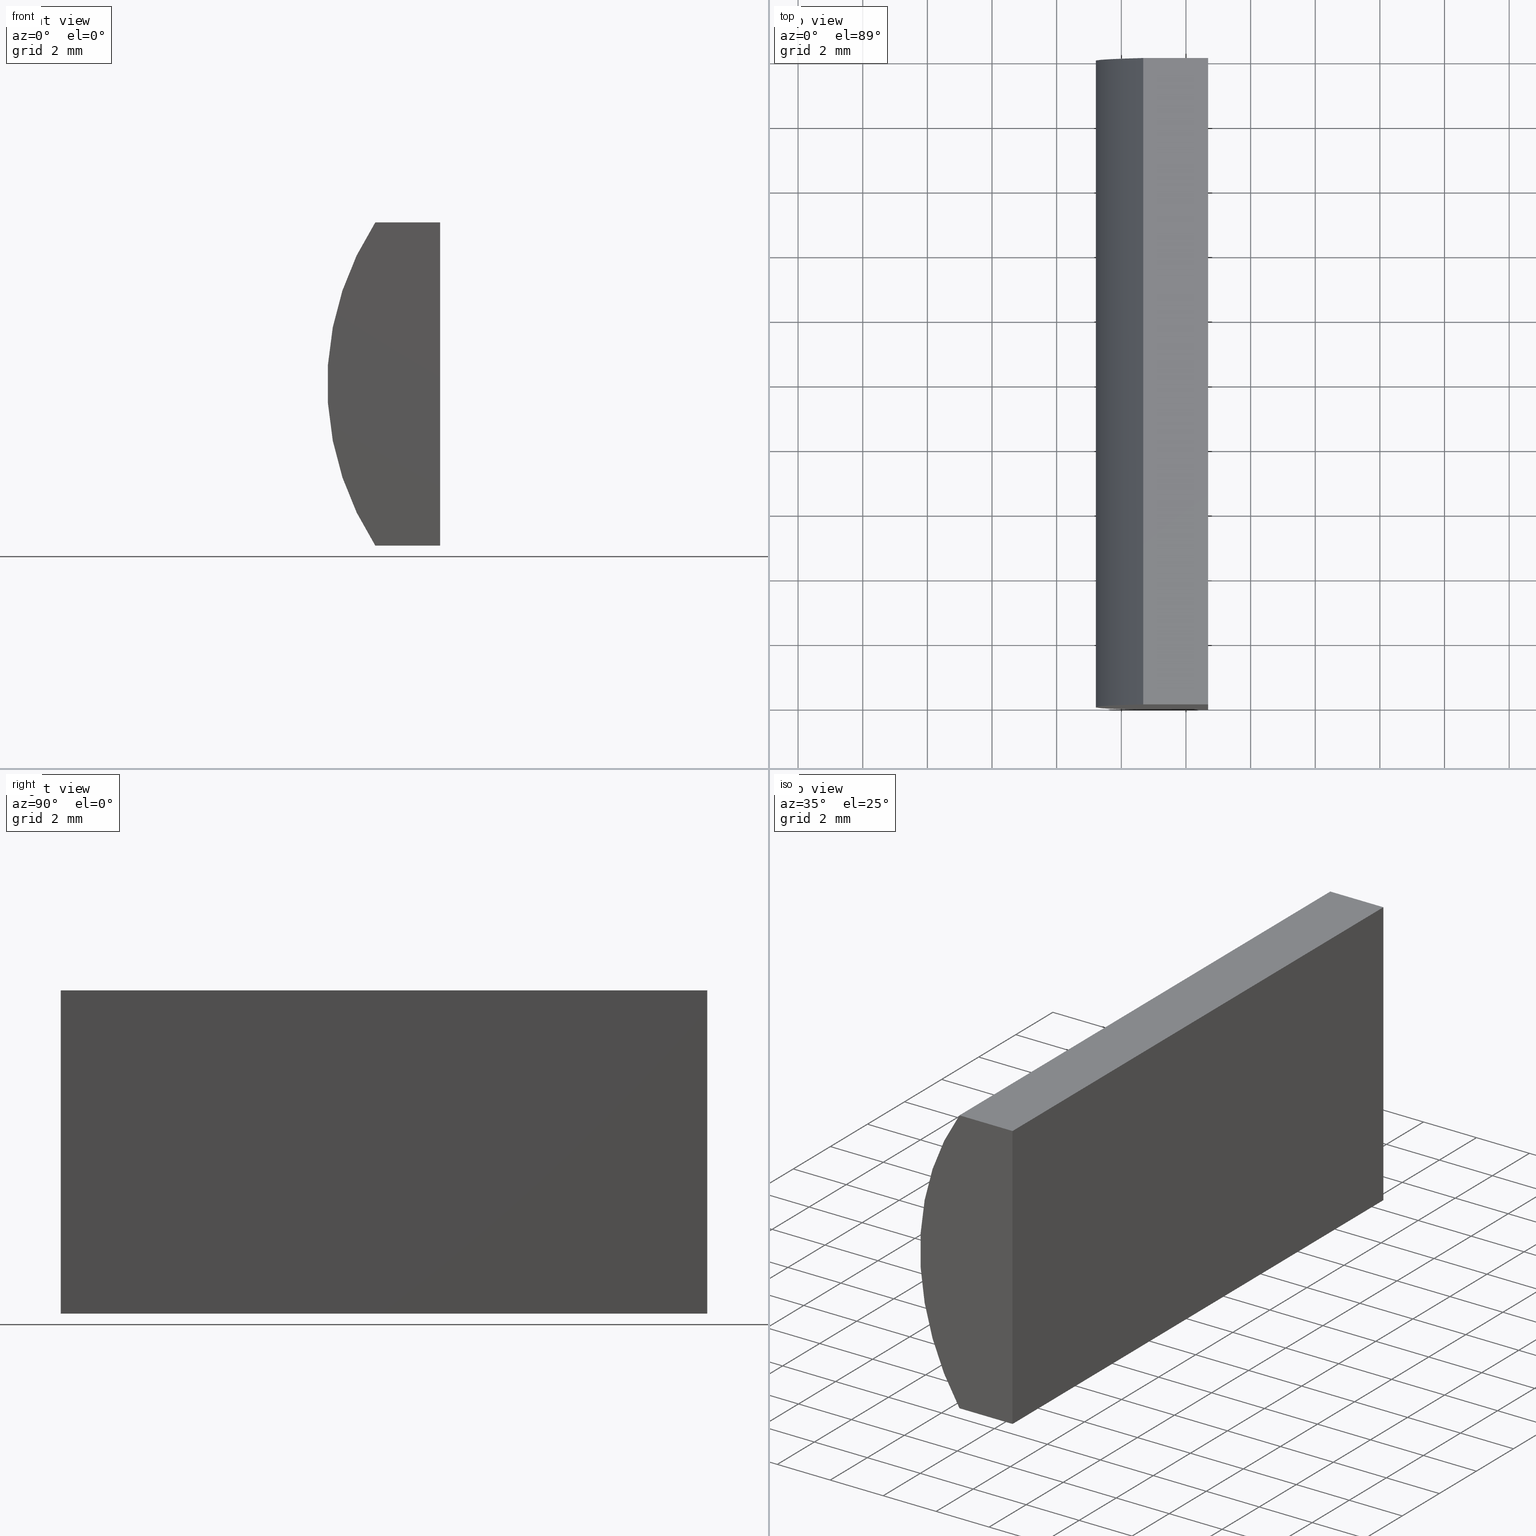
[diagram: canonical four-view strip — front | top / right | iso, engineering-drawing reading convention]
A machine part, canonical four-view strip (front | top / right | iso — engineering-drawing reading convention). The complete STEP part file that produces these views, byte-faithful:
ISO-10303-21;
HEADER;
FILE_DESCRIPTION (( 'STEP AP214' ),
    '1' );
FILE_NAME ('155280.STEP',
    '2019-06-26T01:44:26',
    ( 'user' ),
    ( '΢���й�' ),
    'SwSTEP 2.0',
    'SolidWorks 2016',
    '' );
FILE_SCHEMA (( 'AUTOMOTIVE_DESIGN' ));
ENDSEC;

DATA;
#1 = CARTESIAN_POINT ( 'NONE',  ( -3.319794036484067700, 0.0000000000000000000, -5.000000000000000000 ) ) ;
#2 = LINE ( 'NONE', #1, #130 ) ;
#3 = EDGE_CURVE ( 'NONE', #26, #65, #140, .T. ) ;
#4 = SURFACE_STYLE_USAGE ( .BOTH. , #119 ) ;
#5 = PRESENTATION_LAYER_ASSIGNMENT (  '', '', ( #11 ) ) ;
#6 = APPLICATION_PROTOCOL_DEFINITION ( 'draft international standard', 'automotive_design', 1998, #146 ) ;
#7 = UNCERTAINTY_MEASURE_WITH_UNIT (LENGTH_MEASURE( 1.000000000000000100E-005 ), #183, 'distance_accuracy_value', 'NONE');
#8 = EDGE_CURVE ( 'NONE', #167, #9, #36, .T. ) ;
#9 = VERTEX_POINT ( 'NONE', #39 ) ;
#10 = ADVANCED_FACE ( 'NONE', ( #40 ), #136, .F. ) ;
#11 = STYLED_ITEM ( 'NONE', ( #139 ), #79 ) ;
#12 = DIRECTION ( 'NONE',  ( -0.0000000000000000000, -1.000000000000000000, -0.0000000000000000000 ) ) ;
#13 = ORIENTED_EDGE ( 'NONE', *, *, #50, .F. ) ;
#14 = CARTESIAN_POINT ( 'NONE',  ( -3.319794036484067700, 20.00000000000000000, 5.000000000000000000 ) ) ;
#15 = EDGE_CURVE ( 'NONE', #167, #144, #63, .T. ) ;
#16 = DIRECTION ( 'NONE',  ( -1.000000000000000000, 0.0000000000000000000, 3.035766082959411900E-016 ) ) ;
#17 = DIRECTION ( 'NONE',  ( -3.035766082959411900E-016, -0.0000000000000000000, -1.000000000000000000 ) ) ;
#18 = EDGE_CURVE ( 'NONE', #9, #57, #125, .T. ) ;
#19 = SURFACE_STYLE_FILL_AREA ( #181 ) ;
#20 =( LENGTH_UNIT ( ) NAMED_UNIT ( * ) SI_UNIT ( .MILLI., .METRE. ) );
#21 = CARTESIAN_POINT ( 'NONE',  ( -3.319794036484067700, 20.00000000000000000, 5.000000000000000000 ) ) ;
#22 = AXIS2_PLACEMENT_3D ( 'NONE', #32, #148, #114 ) ;
#23 = CARTESIAN_POINT ( 'NONE',  ( -1.314795665148736900, 20.00000000000000000, -5.000000000000001800 ) ) ;
#24 =( GEOMETRIC_REPRESENTATION_CONTEXT ( 3 ) GLOBAL_UNCERTAINTY_ASSIGNED_CONTEXT ( ( #97 ) ) GLOBAL_UNIT_ASSIGNED_CONTEXT ( ( #71, #184, #89 ) ) REPRESENTATION_CONTEXT ( 'NONE', 'WORKASPACE' ) );
#25 = ADVANCED_FACE ( 'NONE', ( #78 ), #166, .F. ) ;
#26 = VERTEX_POINT ( 'NONE', #153 ) ;
#27 = AXIS2_PLACEMENT_3D ( 'NONE', #179, #16, #106 ) ;
#28 = CYLINDRICAL_SURFACE ( 'NONE', #67, 9.160000000000001900 ) ;
#29 = DIRECTION ( 'NONE',  ( -3.035766082959411900E-016, -0.0000000000000000000, -1.000000000000000000 ) ) ;
#30 = EDGE_LOOP ( 'NONE', ( #115, #13, #189, #68 ) ) ;
#31 = CARTESIAN_POINT ( 'NONE',  ( -3.319794036484067700, 0.0000000000000000000, 5.000000000000000000 ) ) ;
#32 = CARTESIAN_POINT ( 'NONE',  ( 4.355204334851265500, 20.00000000000000000, 4.286263797015675000E-017 ) ) ;
#33 = ORIENTED_EDGE ( 'NONE', *, *, #38, .F. ) ;
#34 = PRODUCT_DEFINITION_CONTEXT ( 'detailed design', #87, 'design' ) ;
#35 = CARTESIAN_POINT ( 'NONE',  ( -1.314795665148736900, 20.00000000000000000, -5.000000000000001800 ) ) ;
#36 = LINE ( 'NONE', #196, #129 ) ;
#37 =( NAMED_UNIT ( * ) SI_UNIT ( $, .STERADIAN. ) SOLID_ANGLE_UNIT ( ) );
#38 = EDGE_CURVE ( 'NONE', #9, #124, #163, .T. ) ;
#39 = CARTESIAN_POINT ( 'NONE',  ( -1.314795665148734000, 20.00000000000000000, 5.000000000000000000 ) ) ;
#40 = FACE_OUTER_BOUND ( 'NONE', #121, .T. ) ;
#41 = VECTOR ( 'NONE', #49, 1000.000000000000000 ) ;
#42 = ADVANCED_FACE ( 'NONE', ( #168 ), #28, .T. ) ;
#43 = PRODUCT_DEFINITION_FORMATION_WITH_SPECIFIED_SOURCE ( '�κ�', '', #101, .NOT_KNOWN. ) ;
#44 = VECTOR ( 'NONE', #56, 1000.000000000000000 ) ;
#45 = CARTESIAN_POINT ( 'NONE',  ( 4.355204334851265500, 0.0000000000000000000, 4.286263797015675000E-017 ) ) ;
#46 = ORIENTED_EDGE ( 'NONE', *, *, #126, .T. ) ;
#47 = CARTESIAN_POINT ( 'NONE',  ( -1.314795665148734000, 0.0000000000000000000, 5.000000000000000000 ) ) ;
#48 = FACE_OUTER_BOUND ( 'NONE', #143, .T. ) ;
#49 = DIRECTION ( 'NONE',  ( -1.000000000000000000, -0.0000000000000000000, 8.651994439384406700E-016 ) ) ;
#50 = EDGE_CURVE ( 'NONE', #57, #172, #77, .T. ) ;
#51 = ORIENTED_EDGE ( 'NONE', *, *, #60, .F. ) ;
#52 = CARTESIAN_POINT ( 'NONE',  ( 0.0000000000000000000, 0.0000000000000000000, 0.0000000000000000000 ) ) ;
#53 = VECTOR ( 'NONE', #137, 1000.000000000000000 ) ;
#54 = FILL_AREA_STYLE ('',( #151 ) ) ;
#55 = UNCERTAINTY_MEASURE_WITH_UNIT (LENGTH_MEASURE( 1.000000000000000100E-005 ), #20, 'distance_accuracy_value', 'NONE');
#56 = DIRECTION ( 'NONE',  ( -0.0000000000000000000, -1.000000000000000000, -0.0000000000000000000 ) ) ;
#57 = VERTEX_POINT ( 'NONE', #35 ) ;
#58 = EDGE_CURVE ( 'NONE', #124, #172, #117, .T. ) ;
#59 = ORIENTED_EDGE ( 'NONE', *, *, #109, .F. ) ;
#60 = EDGE_CURVE ( 'NONE', #57, #26, #194, .T. ) ;
#61 = PRODUCT_DEFINITION_SHAPE ( 'NONE', 'NONE',  #62 ) ;
#62 = PRODUCT_DEFINITION ( 'δ֪', '', #43, #34 ) ;
#63 = LINE ( 'NONE', #123, #118 ) ;
#64 = CARTESIAN_POINT ( 'NONE',  ( -1.314795665148734000, 20.00000000000000000, 5.000000000000000000 ) ) ;
#65 = VERTEX_POINT ( 'NONE', #164 ) ;
#66 = DIRECTION ( 'NONE',  ( 0.0000000000000000000, 1.000000000000000000, 0.0000000000000000000 ) ) ;
#67 = AXIS2_PLACEMENT_3D ( 'NONE', #81, #174, #173 ) ;
#68 = ORIENTED_EDGE ( 'NONE', *, *, #38, .T. ) ;
#69 =( NAMED_UNIT ( * ) PLANE_ANGLE_UNIT ( ) SI_UNIT ( $, .RADIAN. ) );
#70 =( GEOMETRIC_REPRESENTATION_CONTEXT ( 3 ) GLOBAL_UNCERTAINTY_ASSIGNED_CONTEXT ( ( #7 ) ) GLOBAL_UNIT_ASSIGNED_CONTEXT ( ( #183, #69, #195 ) ) REPRESENTATION_CONTEXT ( 'NONE', 'WORKASPACE' ) );
#71 =( LENGTH_UNIT ( ) NAMED_UNIT ( * ) SI_UNIT ( .MILLI., .METRE. ) );
#72 = EDGE_LOOP ( 'NONE', ( #110, #154, #191, #198 ) ) ;
#73 = CARTESIAN_POINT ( 'NONE',  ( -1.314795665148736900, 0.0000000000000000000, -5.000000000000001800 ) ) ;
#74 = CLOSED_SHELL ( 'NONE', ( #42, #25, #98, #10, #99, #171 ) ) ;
#75 = VECTOR ( 'NONE', #17, 1000.000000000000000 ) ;
#76 = AXIS2_PLACEMENT_3D ( 'NONE', #45, #192, #160 ) ;
#77 = LINE ( 'NONE', #92, #199 ) ;
#78 = FACE_OUTER_BOUND ( 'NONE', #156, .T. ) ;
#79 = ADVANCED_BREP_SHAPE_REPRESENTATION ( '155280', ( #188, #193 ), #70 ) ;
#80 = CIRCLE ( 'NONE', #76, 9.160000000000001900 ) ;
#81 = CARTESIAN_POINT ( 'NONE',  ( 4.355204334851265500, 20.00000000000000000, 4.286263797015675000E-017 ) ) ;
#82 = MECHANICAL_DESIGN_GEOMETRIC_PRESENTATION_REPRESENTATION (  '', ( #11 ), #142 ) ;
#83 = DIRECTION ( 'NONE',  ( 1.000000000000000000, 0.0000000000000000000, -8.651994439384407600E-016 ) ) ;
#84 = CARTESIAN_POINT ( 'NONE',  ( -3.319794036484067700, 20.00000000000000000, -5.000000000000000000 ) ) ;
#85 = FILL_AREA_STYLE_COLOUR ( '', #138 ) ;
#86 = DIRECTION ( 'NONE',  ( 1.000000000000000000, 0.0000000000000000000, 0.0000000000000000000 ) ) ;
#87 = APPLICATION_CONTEXT ( 'automotive_design' ) ;
#88 = EDGE_CURVE ( 'NONE', #144, #124, #201, .T. ) ;
#89 =( NAMED_UNIT ( * ) SI_UNIT ( $, .STERADIAN. ) SOLID_ANGLE_UNIT ( ) );
#90 = DIRECTION ( 'NONE',  ( 0.0000000000000000000, 0.0000000000000000000, -1.000000000000000000 ) ) ;
#91 = CARTESIAN_POINT ( 'NONE',  ( -3.319794036484067700, 20.00000000000000000, -5.000000000000000000 ) ) ;
#92 = CARTESIAN_POINT ( 'NONE',  ( -1.314795665148736900, 20.00000000000000000, -5.000000000000001800 ) ) ;
#93 = ORIENTED_EDGE ( 'NONE', *, *, #3, .F. ) ;
#94 = EDGE_CURVE ( 'NONE', #26, #167, #141, .T. ) ;
#95 = VECTOR ( 'NONE', #29, 1000.000000000000000 ) ;
#96 = AXIS2_PLACEMENT_3D ( 'NONE', #91, #145, #83 ) ;
#97 = UNCERTAINTY_MEASURE_WITH_UNIT (LENGTH_MEASURE( 1.000000000000000100E-005 ), #71, 'distance_accuracy_value', 'NONE');
#98 = ADVANCED_FACE ( 'NONE', ( #157 ), #132, .F. ) ;
#99 = ADVANCED_FACE ( 'NONE', ( #203 ), #162, .T. ) ;
#100 = ORIENTED_EDGE ( 'NONE', *, *, #50, .T. ) ;
#101 = PRODUCT ( '155280', '155280', '', ( #161 ) ) ;
#102 = PRESENTATION_LAYER_ASSIGNMENT (  '', '', ( #186 ) ) ;
#103 = ORIENTED_EDGE ( 'NONE', *, *, #8, .F. ) ;
#104 = DIRECTION ( 'NONE',  ( 0.0000000000000000000, -0.0000000000000000000, 1.000000000000000000 ) ) ;
#105 = CARTESIAN_POINT ( 'NONE',  ( -1.314795665148736900, 0.0000000000000000000, -5.000000000000001800 ) ) ;
#106 = DIRECTION ( 'NONE',  ( 3.035766082959411900E-016, 0.0000000000000000000, 1.000000000000000000 ) ) ;
#107 = APPLICATION_PROTOCOL_DEFINITION ( 'draft international standard', 'automotive_design', 1998, #87 ) ;
#108 = ORIENTED_EDGE ( 'NONE', *, *, #15, .F. ) ;
#109 = EDGE_CURVE ( 'NONE', #172, #65, #2, .T. ) ;
#110 = ORIENTED_EDGE ( 'NONE', *, *, #94, .T. ) ;
#111 = AXIS2_PLACEMENT_3D ( 'NONE', #21, #90, #120 ) ;
#112 = ORIENTED_EDGE ( 'NONE', *, *, #94, .F. ) ;
#113 = ORIENTED_EDGE ( 'NONE', *, *, #58, .F. ) ;
#114 = DIRECTION ( 'NONE',  ( 0.0000000000000000000, 0.0000000000000000000, 1.000000000000000000 ) ) ;
#115 = ORIENTED_EDGE ( 'NONE', *, *, #58, .T. ) ;
#116 = CARTESIAN_POINT ( 'NONE',  ( 4.355204334851265500, 20.00000000000000000, 4.286263797015675000E-017 ) ) ;
#117 = LINE ( 'NONE', #73, #75 ) ;
#118 = VECTOR ( 'NONE', #12, 1000.000000000000000 ) ;
#119 = SURFACE_SIDE_STYLE ('',( #19 ) ) ;
#120 = DIRECTION ( 'NONE',  ( -1.000000000000000000, 0.0000000000000000000, -0.0000000000000000000 ) ) ;
#121 = EDGE_LOOP ( 'NONE', ( #197, #93, #51, #100 ) ) ;
#122 = DIRECTION ( 'NONE',  ( 1.000000000000000000, 0.0000000000000000000, 0.0000000000000000000 ) ) ;
#123 = CARTESIAN_POINT ( 'NONE',  ( -3.319794036484067700, 20.00000000000000000, 5.000000000000000000 ) ) ;
#124 = VERTEX_POINT ( 'NONE', #47 ) ;
#125 = LINE ( 'NONE', #23, #95 ) ;
#126 = EDGE_CURVE ( 'NONE', #65, #144, #80, .T. ) ;
#127 = ORIENTED_EDGE ( 'NONE', *, *, #126, .F. ) ;
#128 = SHAPE_DEFINITION_REPRESENTATION ( #61, #79 ) ;
#129 = VECTOR ( 'NONE', #122, 1000.000000000000000 ) ;
#130 = VECTOR ( 'NONE', #147, 1000.000000000000000 ) ;
#131 = ORIENTED_EDGE ( 'NONE', *, *, #3, .T. ) ;
#132 = PLANE ( 'NONE',  #27 ) ;
#133 = CARTESIAN_POINT ( 'NONE',  ( -3.319794036484067700, 20.00000000000000000, -5.000000000000000000 ) ) ;
#134 =( NAMED_UNIT ( * ) PLANE_ANGLE_UNIT ( ) SI_UNIT ( $, .RADIAN. ) );
#135 = AXIS2_PLACEMENT_3D ( 'NONE', #176, #190, #104 ) ;
#136 = PLANE ( 'NONE',  #96 ) ;
#137 = DIRECTION ( 'NONE',  ( -0.0000000000000000000, -1.000000000000000000, -0.0000000000000000000 ) ) ;
#138 = COLOUR_RGB ( '',1.000000000000000000, 1.000000000000000000, 1.000000000000000000 ) ;
#139 = PRESENTATION_STYLE_ASSIGNMENT (( #4 ) ) ;
#140 = LINE ( 'NONE', #84, #53 ) ;
#141 = CIRCLE ( 'NONE', #22, 9.160000000000001900 ) ;
#142 =( GEOMETRIC_REPRESENTATION_CONTEXT ( 3 ) GLOBAL_UNCERTAINTY_ASSIGNED_CONTEXT ( ( #55 ) ) GLOBAL_UNIT_ASSIGNED_CONTEXT ( ( #20, #134, #37 ) ) REPRESENTATION_CONTEXT ( 'NONE', 'WORKASPACE' ) );
#143 = EDGE_LOOP ( 'NONE', ( #127, #59, #113, #159 ) ) ;
#144 = VERTEX_POINT ( 'NONE', #31 ) ;
#145 = DIRECTION ( 'NONE',  ( 8.651994439384407600E-016, -0.0000000000000000000, 1.000000000000000000 ) ) ;
#146 = APPLICATION_CONTEXT ( 'automotive_design' ) ;
#147 = DIRECTION ( 'NONE',  ( -1.000000000000000000, -0.0000000000000000000, 8.651994439384406700E-016 ) ) ;
#148 = DIRECTION ( 'NONE',  ( 0.0000000000000000000, 1.000000000000000000, 0.0000000000000000000 ) ) ;
#149 = CARTESIAN_POINT ( 'NONE',  ( -3.319794036484067700, 0.0000000000000000000, 5.000000000000000000 ) ) ;
#150 = EDGE_LOOP ( 'NONE', ( #46, #108, #112, #131 ) ) ;
#151 = FILL_AREA_STYLE_COLOUR ( '', #185 ) ;
#152 = SURFACE_SIDE_STYLE ('',( #158 ) ) ;
#153 = CARTESIAN_POINT ( 'NONE',  ( -3.319794036484067700, 20.00000000000000000, -5.000000000000000000 ) ) ;
#154 = ORIENTED_EDGE ( 'NONE', *, *, #8, .T. ) ;
#155 = MECHANICAL_DESIGN_GEOMETRIC_PRESENTATION_REPRESENTATION (  '', ( #186 ), #24 ) ;
#156 = EDGE_LOOP ( 'NONE', ( #187, #33, #103, #200 ) ) ;
#157 = FACE_OUTER_BOUND ( 'NONE', #30, .T. ) ;
#158 = SURFACE_STYLE_FILL_AREA ( #54 ) ;
#159 = ORIENTED_EDGE ( 'NONE', *, *, #88, .F. ) ;
#160 = DIRECTION ( 'NONE',  ( 0.0000000000000000000, 0.0000000000000000000, 1.000000000000000000 ) ) ;
#161 = PRODUCT_CONTEXT ( 'NONE', #146, 'mechanical' ) ;
#162 = PLANE ( 'NONE',  #169 ) ;
#163 = LINE ( 'NONE', #64, #44 ) ;
#164 = CARTESIAN_POINT ( 'NONE',  ( -3.319794036484067700, 0.0000000000000000000, -5.000000000000000000 ) ) ;
#165 = SURFACE_STYLE_USAGE ( .BOTH. , #152 ) ;
#166 = PLANE ( 'NONE',  #111 ) ;
#167 = VERTEX_POINT ( 'NONE', #14 ) ;
#168 = FACE_OUTER_BOUND ( 'NONE', #150, .T. ) ;
#169 = AXIS2_PLACEMENT_3D ( 'NONE', #116, #66, #177 ) ;
#170 = PRESENTATION_STYLE_ASSIGNMENT (( #165 ) ) ;
#171 = ADVANCED_FACE ( 'NONE', ( #48 ), #175, .F. ) ;
#172 = VERTEX_POINT ( 'NONE', #105 ) ;
#173 = DIRECTION ( 'NONE',  ( 0.0000000000000000000, 0.0000000000000000000, -1.000000000000000000 ) ) ;
#174 = DIRECTION ( 'NONE',  ( -0.0000000000000000000, -1.000000000000000000, -0.0000000000000000000 ) ) ;
#175 = PLANE ( 'NONE',  #135 ) ;
#176 = CARTESIAN_POINT ( 'NONE',  ( 4.355204334851265500, 0.0000000000000000000, 4.286263797015675000E-017 ) ) ;
#177 = DIRECTION ( 'NONE',  ( 0.0000000000000000000, -0.0000000000000000000, 1.000000000000000000 ) ) ;
#178 = VECTOR ( 'NONE', #86, 1000.000000000000000 ) ;
#179 = CARTESIAN_POINT ( 'NONE',  ( -1.314795665148736900, 20.00000000000000000, -5.000000000000001800 ) ) ;
#180 = DIRECTION ( 'NONE',  ( 1.000000000000000000, 0.0000000000000000000, 0.0000000000000000000 ) ) ;
#181 = FILL_AREA_STYLE ('',( #85 ) ) ;
#182 = PRODUCT_RELATED_PRODUCT_CATEGORY ( 'part', '', ( #101 ) ) ;
#183 =( LENGTH_UNIT ( ) NAMED_UNIT ( * ) SI_UNIT ( .MILLI., .METRE. ) );
#184 =( NAMED_UNIT ( * ) PLANE_ANGLE_UNIT ( ) SI_UNIT ( $, .RADIAN. ) );
#185 = COLOUR_RGB ( '',1.000000000000000000, 1.000000000000000000, 1.000000000000000000 ) ;
#186 = STYLED_ITEM ( 'NONE', ( #170 ), #188 ) ;
#187 = ORIENTED_EDGE ( 'NONE', *, *, #88, .T. ) ;
#188 = MANIFOLD_SOLID_BREP ( '͹̨-����1', #74 ) ;
#189 = ORIENTED_EDGE ( 'NONE', *, *, #18, .F. ) ;
#190 = DIRECTION ( 'NONE',  ( 0.0000000000000000000, 1.000000000000000000, 0.0000000000000000000 ) ) ;
#191 = ORIENTED_EDGE ( 'NONE', *, *, #18, .T. ) ;
#192 = DIRECTION ( 'NONE',  ( 0.0000000000000000000, 1.000000000000000000, 0.0000000000000000000 ) ) ;
#193 = AXIS2_PLACEMENT_3D ( 'NONE', #52, #204, #180 ) ;
#194 = LINE ( 'NONE', #133, #41 ) ;
#195 =( NAMED_UNIT ( * ) SI_UNIT ( $, .STERADIAN. ) SOLID_ANGLE_UNIT ( ) );
#196 = CARTESIAN_POINT ( 'NONE',  ( -3.319794036484067700, 20.00000000000000000, 5.000000000000000000 ) ) ;
#197 = ORIENTED_EDGE ( 'NONE', *, *, #109, .T. ) ;
#198 = ORIENTED_EDGE ( 'NONE', *, *, #60, .T. ) ;
#199 = VECTOR ( 'NONE', #202, 1000.000000000000000 ) ;
#200 = ORIENTED_EDGE ( 'NONE', *, *, #15, .T. ) ;
#201 = LINE ( 'NONE', #149, #178 ) ;
#202 = DIRECTION ( 'NONE',  ( -0.0000000000000000000, -1.000000000000000000, -0.0000000000000000000 ) ) ;
#203 = FACE_OUTER_BOUND ( 'NONE', #72, .T. ) ;
#204 = DIRECTION ( 'NONE',  ( 0.0000000000000000000, 0.0000000000000000000, 1.000000000000000000 ) ) ;
ENDSEC;
END-ISO-10303-21;
